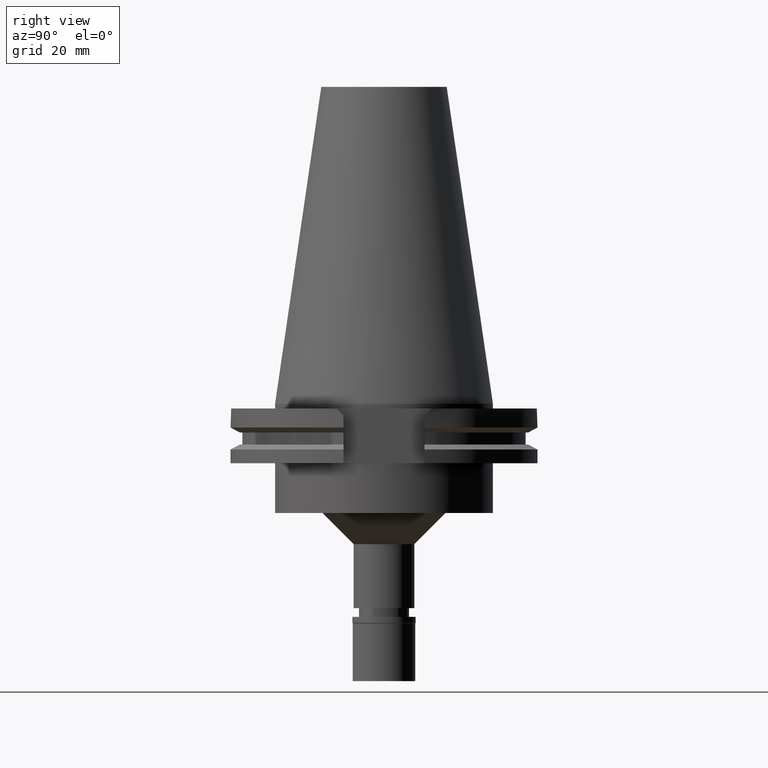
[diagram: clean part render]
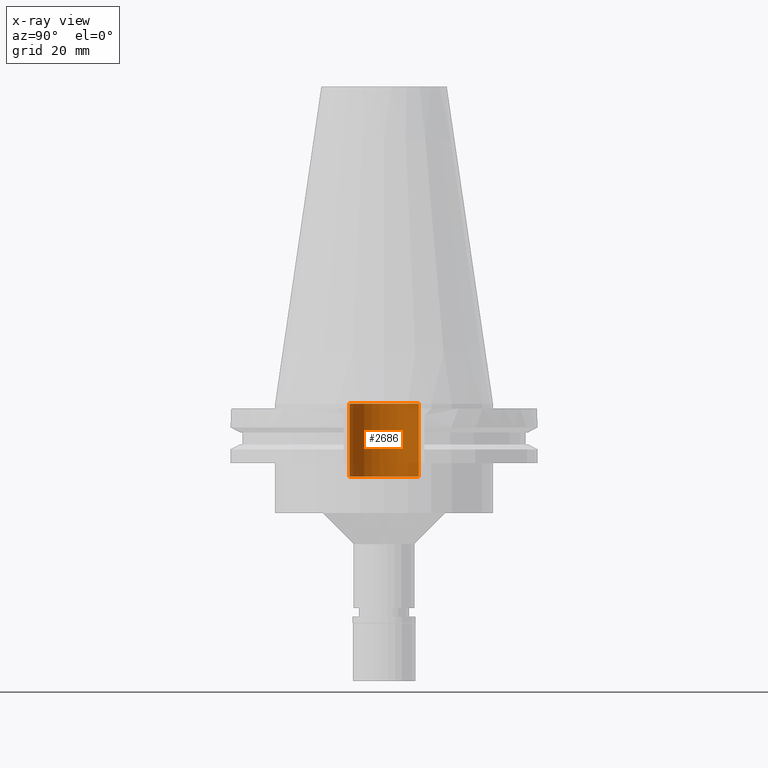
[diagram: x-ray — body ghosted, one internal face saturated and labeled with its STEP entity id]
A machine part, right view, then the same camera in x-ray: the body is ghosted and one INTERNAL B-rep face — a face not visible from any outside direction — is saturated and labeled: STEP entity #2686.
In plain terms, the highlighted cylindrical surface (edge-blend (fillet) strip) has radius 11.15 mm, axis along (0, 0, -1).
Its self-contained STEP definition (entity closure, byte-faithful):
#14 = DIRECTION ( 'NONE',  ( 0.0000000000000000000, -1.000000000000000000, 0.0000000000000000000 ) ) ;
#61 = VERTEX_POINT ( 'NONE', #1815 ) ;
#245 = LINE ( 'NONE', #3312, #2458 ) ;
#260 = EDGE_CURVE ( 'NONE', #3285, #851, #245, .T. ) ;
#276 = CARTESIAN_POINT ( 'NONE',  ( 0.0000000000000000000, 2.580636967502999935E-14, -2.131628207279999655E-13 ) ) ;
#284 = CIRCLE ( 'NONE', #2950, 11.15000000000000036 ) ;
#341 = AXIS2_PLACEMENT_3D ( 'NONE', #1964, #1233, #2224 ) ;
#366 = ORIENTED_EDGE ( 'NONE', *, *, #1723, .T. ) ;
#580 = CARTESIAN_POINT ( 'NONE',  ( 0.0000000000000000000, 11.15000000000000036, -2.131628207279999655E-13 ) ) ;
#770 = CIRCLE ( 'NONE', #1666, 11.15000000000000036 ) ;
#851 = VERTEX_POINT ( 'NONE', #2807 ) ;
#996 = DIRECTION ( 'NONE',  ( 0.0000000000000000000, 0.0000000000000000000, 1.000000000000000000 ) ) ;
#1233 = DIRECTION ( 'NONE',  ( 0.0000000000000000000, 0.0000000000000000000, -1.000000000000000000 ) ) ;
#1267 = VERTEX_POINT ( 'NONE', #580 ) ;
#1378 = ORIENTED_EDGE ( 'NONE', *, *, #260, .F. ) ;
#1607 = DIRECTION ( 'NONE',  ( 0.0000000000000000000, 0.0000000000000000000, 1.000000000000000000 ) ) ;
#1666 = AXIS2_PLACEMENT_3D ( 'NONE', #2264, #3315, #14 ) ;
#1723 = EDGE_CURVE ( 'NONE', #61, #1267, #3106, .T. ) ;
#1815 = CARTESIAN_POINT ( 'NONE',  ( 0.0000000000000000000, 11.15000000000000036, -23.40000000000000213 ) ) ;
#1964 = CARTESIAN_POINT ( 'NONE',  ( 0.0000000000000000000, 2.580636967502999935E-14, 110.7250000000000085 ) ) ;
#2081 = EDGE_CURVE ( 'NONE', #3285, #61, #770, .T. ) ;
#2192 = EDGE_CURVE ( 'NONE', #851, #1267, #284, .T. ) ;
#2224 = DIRECTION ( 'NONE',  ( 0.0000000000000000000, -1.000000000000000000, 0.0000000000000000000 ) ) ;
#2264 = CARTESIAN_POINT ( 'NONE',  ( 0.0000000000000000000, 2.580636967502999935E-14, -23.40000000000000213 ) ) ;
#2309 = DIRECTION ( 'NONE',  ( 0.0000000000000000000, -1.000000000000000000, 0.0000000000000000000 ) ) ;
#2458 = VECTOR ( 'NONE', #996, 1000.000000000000000 ) ;
#2504 = EDGE_LOOP ( 'NONE', ( #2910, #1378, #2736, #366 ) ) ;
#2611 = CARTESIAN_POINT ( 'NONE',  ( 0.0000000000000000000, 11.15000000000000036, -23.40000000000000213 ) ) ;
#2686 = ADVANCED_FACE ( 'NONE', ( #3039 ), #2981, .F. ) ;
#2736 = ORIENTED_EDGE ( 'NONE', *, *, #2081, .T. ) ;
#2807 = CARTESIAN_POINT ( 'NONE',  ( 0.0000000000000000000, -11.15000000000000036, -2.131628207279999655E-13 ) ) ;
#2910 = ORIENTED_EDGE ( 'NONE', *, *, #2192, .F. ) ;
#2950 = AXIS2_PLACEMENT_3D ( 'NONE', #276, #3283, #2309 ) ;
#2981 = CYLINDRICAL_SURFACE ( 'NONE', #341, 11.15000000000000036 ) ;
#3039 = FACE_OUTER_BOUND ( 'NONE', #2504, .T. ) ;
#3106 = LINE ( 'NONE', #2611, #3222 ) ;
#3222 = VECTOR ( 'NONE', #1607, 1000.000000000000000 ) ;
#3283 = DIRECTION ( 'NONE',  ( 0.0000000000000000000, 0.0000000000000000000, -1.000000000000000000 ) ) ;
#3285 = VERTEX_POINT ( 'NONE', #3288 ) ;
#3288 = CARTESIAN_POINT ( 'NONE',  ( 0.0000000000000000000, -11.15000000000000036, -23.40000000000000213 ) ) ;
#3312 = CARTESIAN_POINT ( 'NONE',  ( 0.0000000000000000000, -11.15000000000000036, -23.40000000000000213 ) ) ;
#3315 = DIRECTION ( 'NONE',  ( 0.0000000000000000000, 0.0000000000000000000, -1.000000000000000000 ) ) ;